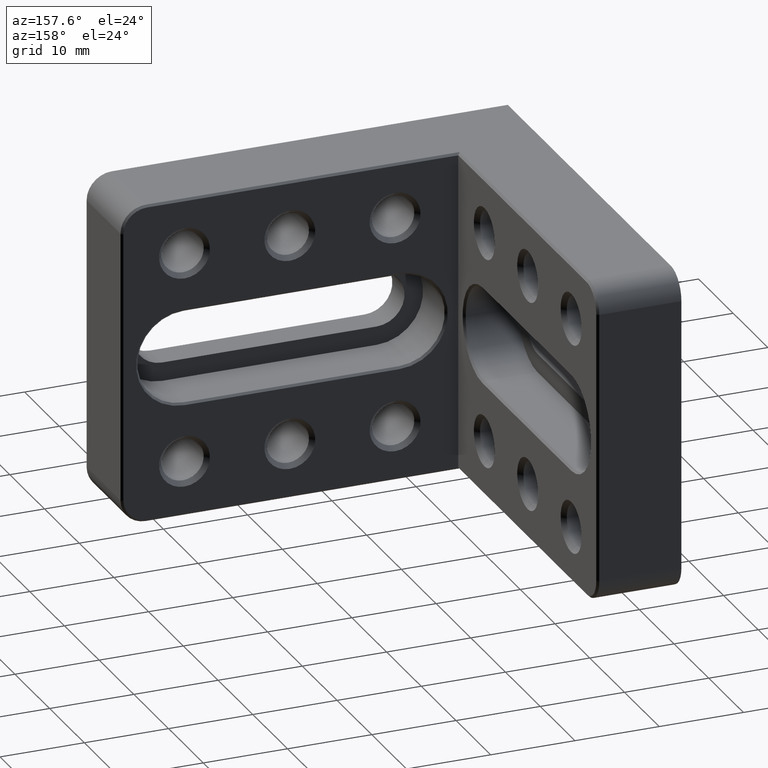
[diagram: clean part render]
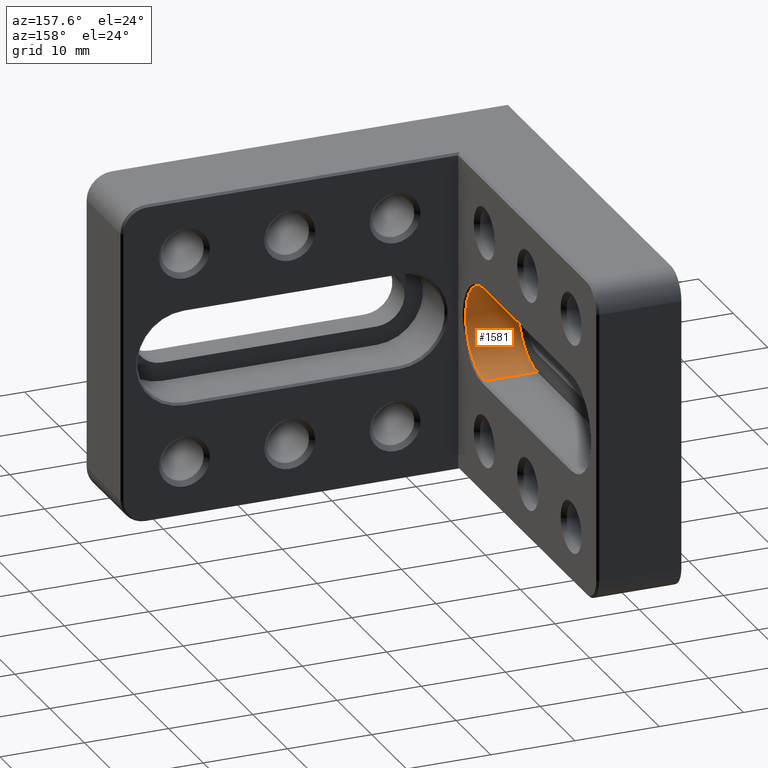
[diagram: same view with one face highlighted and labeled with its STEP entity id]
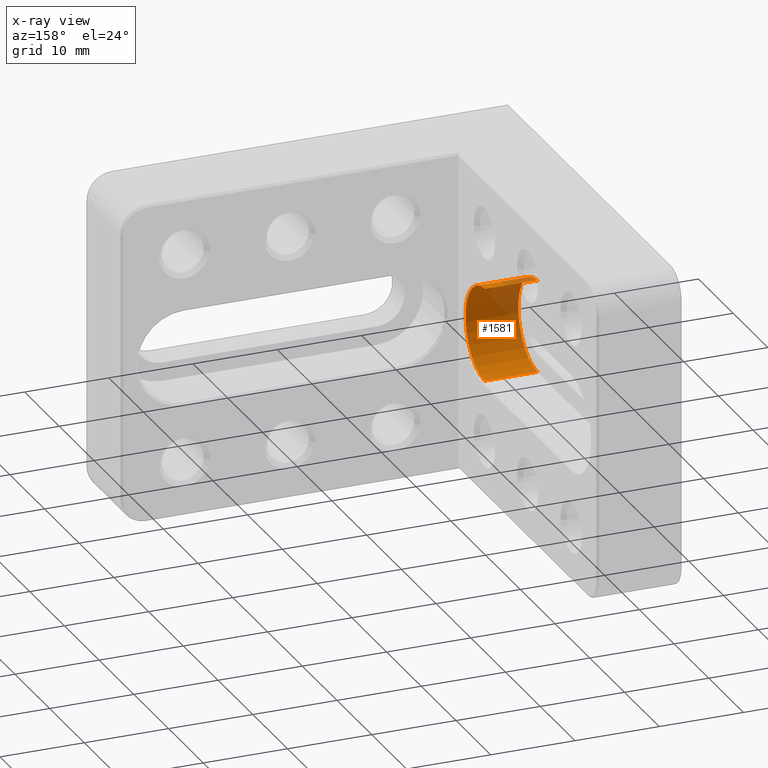
[diagram: x-ray of the same camera — body ghosted, the highlighted face saturated]
A machine part, auxiliary view. The second image highlights one B-rep face of the part: STEP entity #1581.
The next image is the same camera in x-ray: the body ghosted, the highlighted face saturated — about 16% of this face is hidden behind the body in this view.
In plain terms, the highlighted cylindrical surface (partial cylindrical patch) has radius 5.5 mm, axis along (1, -0, -0).
Its self-contained STEP definition (entity closure, byte-faithful):
#18 = VERTEX_POINT ( 'NONE', #1509 ) ;
#67 = DIRECTION ( 'NONE',  ( 0.000000000000000000, 0.000000000000000000, -1.000000000000000000 ) ) ;
#68 = CARTESIAN_POINT ( 'NONE',  ( -21.50000000000000355, 17.00000000000000355, -5.124275824990581668E-16 ) ) ;
#85 = CARTESIAN_POINT ( 'NONE',  ( -21.50000000000000355, 17.00000000000000355, 5.499999999999999112 ) ) ;
#93 = VERTEX_POINT ( 'NONE', #85 ) ;
#199 = DIRECTION ( 'NONE',  ( 1.000000000000000000, -0.000000000000000000, -1.369518533665900312E-16 ) ) ;
#208 = ORIENTED_EDGE ( 'NONE', *, *, #269, .F. ) ;
#214 = DIRECTION ( 'NONE',  ( 1.000000000000000000, 0.000000000000000000, -1.369518533665906721E-16 ) ) ;
#264 = CIRCLE ( 'NONE', #1828, 5.500000000000000000 ) ;
#269 = EDGE_CURVE ( 'NONE', #1791, #663, #1602, .T. ) ;
#279 = AXIS2_PLACEMENT_3D ( 'NONE', #68, #199, #383 ) ;
#357 = AXIS2_PLACEMENT_3D ( 'NONE', #1992, #381, #67 ) ;
#381 = DIRECTION ( 'NONE',  ( 1.000000000000000000, 0.000000000000000000, -1.369518533665900312E-16 ) ) ;
#383 = DIRECTION ( 'NONE',  ( 0.000000000000000000, 0.000000000000000000, -1.000000000000000000 ) ) ;
#407 = EDGE_CURVE ( 'NONE', #93, #1791, #1238, .T. ) ;
#450 = DIRECTION ( 'NONE',  ( 1.000000000000000000, -0.000000000000000000, -1.369518533665900312E-16 ) ) ;
#508 = DIRECTION ( 'NONE',  ( 0.000000000000000000, 0.000000000000000000, 1.000000000000000000 ) ) ;
#588 = ORIENTED_EDGE ( 'NONE', *, *, #1820, .T. ) ;
#663 = VERTEX_POINT ( 'NONE', #1954 ) ;
#866 = FACE_OUTER_BOUND ( 'NONE', #923, .T. ) ;
#923 = EDGE_LOOP ( 'NONE', ( #588, #1544, #208, #1887 ) ) ;
#942 = CARTESIAN_POINT ( 'NONE',  ( -21.50000000000000355, 17.00000000000000355, -5.500000000000000888 ) ) ;
#957 = VECTOR ( 'NONE', #1769, 1000.000000000000000 ) ;
#976 = CARTESIAN_POINT ( 'NONE',  ( -21.50000000000000355, 17.00000000000000355, 5.499999999999999112 ) ) ;
#1238 = CIRCLE ( 'NONE', #357, 5.500000000000000000 ) ;
#1242 = EDGE_CURVE ( 'NONE', #18, #663, #264, .T. ) ;
#1328 = CARTESIAN_POINT ( 'NONE',  ( -15.25000000000005151, 17.00000000000000355, -1.368376666040239686E-15 ) ) ;
#1509 = CARTESIAN_POINT ( 'NONE',  ( -15.25000000000005151, 17.00000000000000355, 5.499999999999998224 ) ) ;
#1543 = VECTOR ( 'NONE', #450, 1000.000000000000000 ) ;
#1544 = ORIENTED_EDGE ( 'NONE', *, *, #1242, .T. ) ;
#1581 = ADVANCED_FACE ( 'NONE', ( #866 ), #1812, .F. ) ;
#1602 = LINE ( 'NONE', #1798, #957 ) ;
#1633 = LINE ( 'NONE', #976, #1543 ) ;
#1769 = DIRECTION ( 'NONE',  ( 1.000000000000000000, -0.000000000000000000, -1.369518533665900312E-16 ) ) ;
#1791 = VERTEX_POINT ( 'NONE', #942 ) ;
#1798 = CARTESIAN_POINT ( 'NONE',  ( -21.50000000000000355, 17.00000000000000355, -5.500000000000000888 ) ) ;
#1812 = CYLINDRICAL_SURFACE ( 'NONE', #279, 5.500000000000000000 ) ;
#1820 = EDGE_CURVE ( 'NONE', #93, #18, #1633, .T. ) ;
#1828 = AXIS2_PLACEMENT_3D ( 'NONE', #1328, #214, #508 ) ;
#1887 = ORIENTED_EDGE ( 'NONE', *, *, #407, .F. ) ;
#1954 = CARTESIAN_POINT ( 'NONE',  ( -15.25000000000005329, 17.00000000000000355, -5.500000000000001776 ) ) ;
#1992 = CARTESIAN_POINT ( 'NONE',  ( -21.50000000000000355, 17.00000000000000355, -5.124275824990581668E-16 ) ) ;